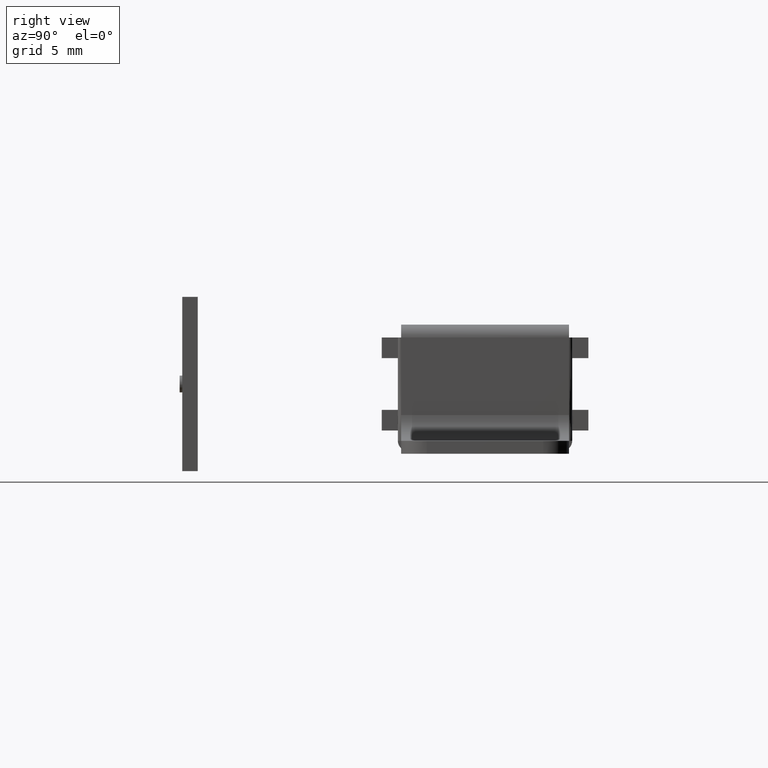
[diagram: clean part render]
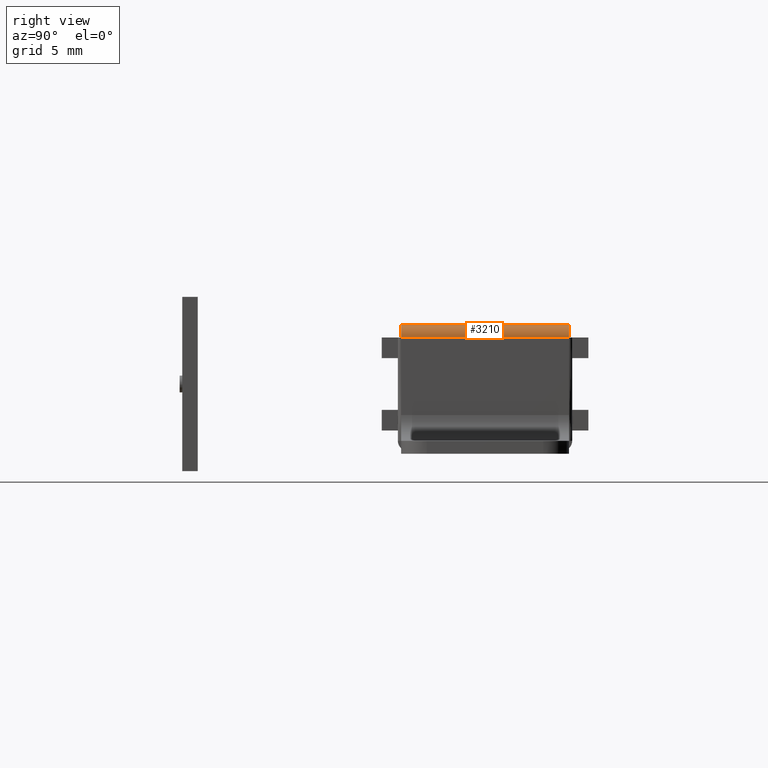
[diagram: same view with one face highlighted and labeled with its STEP entity id]
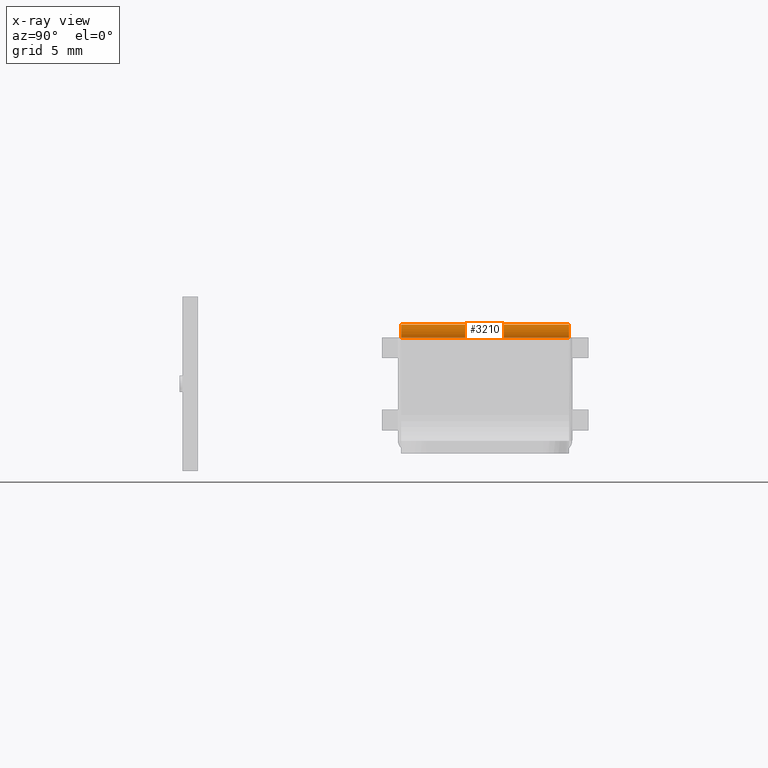
[diagram: x-ray of the same camera — body ghosted, the highlighted face saturated]
A machine part, right view. The second image highlights one B-rep face of the part: STEP entity #3210.
The next image is the same camera in x-ray: the body ghosted, the highlighted face saturated — about 0% of this face is hidden behind the body in this view.
In plain terms, the highlighted face is a freeform B-spline surface patch.
Its self-contained STEP definition (entity closure, byte-faithful):
#1971=CARTESIAN_POINT('',(14.0,-6.500000000000000,9.0));
#1972=VERTEX_POINT('',#1971);
#2177=CARTESIAN_POINT('',(14.0,6.500000000000000,9.0));
#2178=VERTEX_POINT('',#2177);
#3154=CARTESIAN_POINT('',(12.973823051692129,6.825000000000001,9.999657324975557));
#3155=CARTESIAN_POINT('',(12.973823051692129,-6.833125000000001,9.999657324975557));
#3156=CARTESIAN_POINT('',(14.064757588594112,6.825000000000002,10.028224451195991));
#3157=CARTESIAN_POINT('',(14.064757588594112,-6.833125000000001,10.028224451195991));
#3158=CARTESIAN_POINT('',(13.998134798421860,6.825000000000001,8.938951460465146));
#3159=CARTESIAN_POINT('',(13.998134798421860,-6.833125000000001,8.938951460465146));
#3167=(BOUNDED_SURFACE()B_SPLINE_SURFACE(1,2,((#3154,#3156,#3158),(#3155,#3157,#3159)),.UNSPECIFIED.,.F.,.F.,.U.)B_SPLINE_SURFACE_WITH_KNOTS((2,2),(3,3),(0.0,13.658125000000000),(0.0,1.0),.UNSPECIFIED.)GEOMETRIC_REPRESENTATION_ITEM()RATIONAL_B_SPLINE_SURFACE(((1.0,0.675590207615660,1.0),(1.0,0.675590207615660,1.0)))REPRESENTATION_ITEM('')SURFACE());
#3168=CARTESIAN_POINT('',(13.0,-6.500000000000000,10.0));
#3169=VERTEX_POINT('',#3168);
#3170=CARTESIAN_POINT('',(14.0,-6.500000000000000,9.0));
#3171=CARTESIAN_POINT('',(13.999999999999998,-6.500000000000001,9.999999999999998));
#3172=CARTESIAN_POINT('',(13.0,-6.500000000000000,9.999999999999998));
#3180=(BOUNDED_CURVE()B_SPLINE_CURVE(2,(#3170,#3171,#3172),.UNSPECIFIED.,.F.,.U.)CURVE()GEOMETRIC_REPRESENTATION_ITEM()QUASI_UNIFORM_CURVE()RATIONAL_B_SPLINE_CURVE((1.0,0.707106781186548,1.0))REPRESENTATION_ITEM(''));
#3181=EDGE_CURVE('',#1972,#3169,#3180,.T.);
#3182=ORIENTED_EDGE('',*,*,#3181,.F.);
#3183=CARTESIAN_POINT('',(14.0,6.500000000000000,9.0));
#3184=CARTESIAN_POINT('',(14.0,-6.500000000000000,9.0));
#3185=QUASI_UNIFORM_CURVE('',1,(#3183,#3184),.UNSPECIFIED.,.F.,.U.);
#3186=EDGE_CURVE('',#2178,#1972,#3185,.T.);
#3187=ORIENTED_EDGE('',*,*,#3186,.F.);
#3188=CARTESIAN_POINT('',(13.0,6.500000000000000,10.0));
#3189=VERTEX_POINT('',#3188);
#3190=CARTESIAN_POINT('',(13.0,6.500000000000000,9.999999999999998));
#3191=CARTESIAN_POINT('',(13.999999999999998,6.500000000000001,9.999999999999998));
#3192=CARTESIAN_POINT('',(14.0,6.500000000000000,9.0));
#3200=(BOUNDED_CURVE()B_SPLINE_CURVE(2,(#3190,#3191,#3192),.UNSPECIFIED.,.F.,.U.)CURVE()GEOMETRIC_REPRESENTATION_ITEM()QUASI_UNIFORM_CURVE()RATIONAL_B_SPLINE_CURVE((1.0,0.707106781186548,1.0))REPRESENTATION_ITEM(''));
#3201=EDGE_CURVE('',#3189,#2178,#3200,.T.);
#3202=ORIENTED_EDGE('',*,*,#3201,.F.);
#3203=CARTESIAN_POINT('',(13.0,-6.500000000000000,10.0));
#3204=CARTESIAN_POINT('',(13.0,6.500000000000000,10.0));
#3205=QUASI_UNIFORM_CURVE('',1,(#3203,#3204),.UNSPECIFIED.,.F.,.U.);
#3206=EDGE_CURVE('',#3169,#3189,#3205,.T.);
#3207=ORIENTED_EDGE('',*,*,#3206,.F.);
#3208=EDGE_LOOP('',(#3182,#3187,#3202,#3207));
#3209=FACE_OUTER_BOUND('',#3208,.T.);
#3210=ADVANCED_FACE('',(#3209),#3167,.T.);